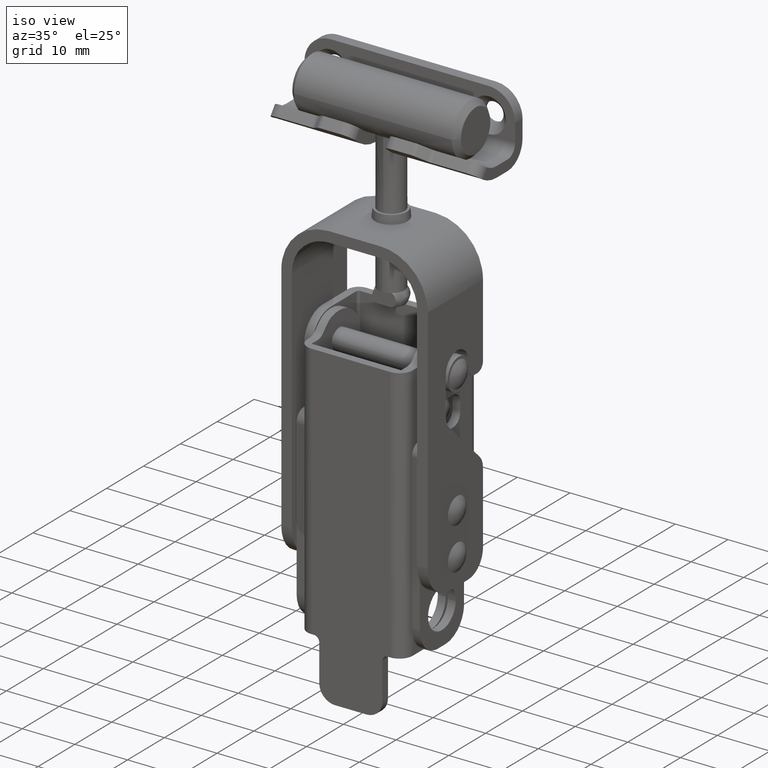
[diagram: clean part render]
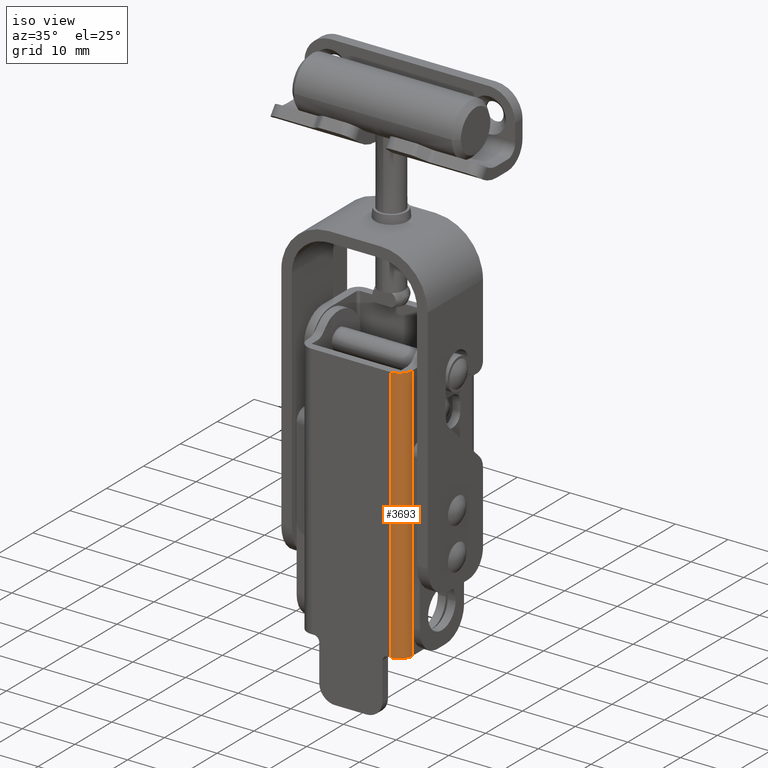
[diagram: same view with one face highlighted and labeled with its STEP entity id]
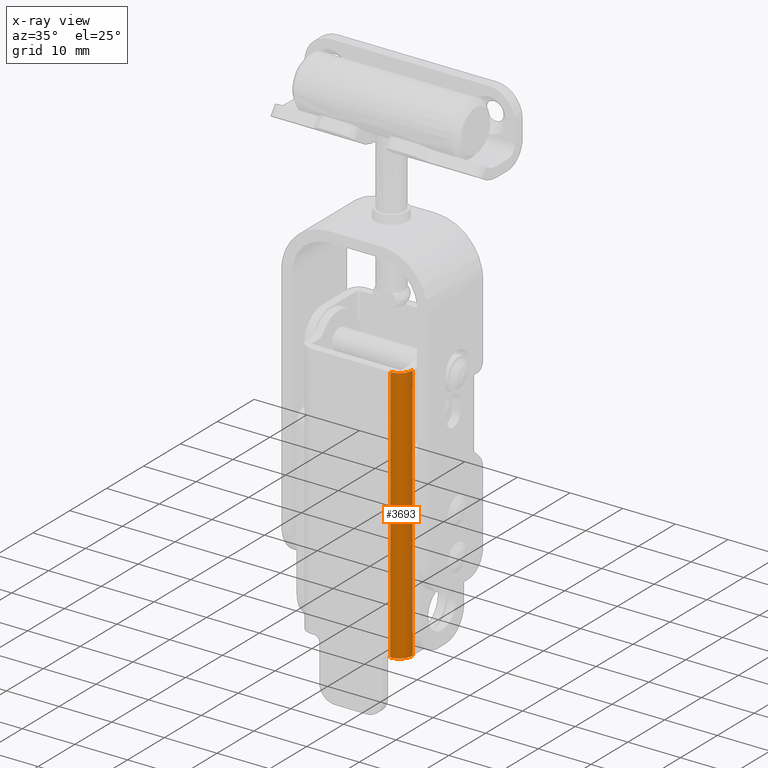
[diagram: x-ray of the same camera — body ghosted, the highlighted face saturated]
A machine part, iso view. The second image highlights one B-rep face of the part: STEP entity #3693.
The next image is the same camera in x-ray: the body ghosted, the highlighted face saturated — about 0% of this face is hidden behind the body in this view.
In plain terms, the highlighted face is a freeform B-spline surface patch.
Its self-contained STEP definition (entity closure, byte-faithful):
#3633=CARTESIAN_POINT('',(7.434557629227816,-17.999143312443341,11.225000003566540));
#3634=CARTESIAN_POINT('',(7.434557629227816,-17.999143312443341,-40.255624996508381));
#3635=CARTESIAN_POINT('',(10.187462001384292,-18.071230650420098,11.225000003566544));
#3636=CARTESIAN_POINT('',(10.187462001384292,-18.071230650420098,-40.255624996508367));
#3637=CARTESIAN_POINT('',(9.993811198449519,-15.324199810939492,11.225000003566542));
#3638=CARTESIAN_POINT('',(9.993811198449519,-15.324199810939492,-40.255624996508388));
#3646=(BOUNDED_SURFACE()B_SPLINE_SURFACE(1,2,((#3633,#3635,#3637),(#3634,#3636,#3638)),.UNSPECIFIED.,.F.,.F.,.U.)B_SPLINE_SURFACE_WITH_KNOTS((2,2),(3,3),(0.0,51.480625000074923),(0.0,4.427855860220895),.UNSPECIFIED.)GEOMETRIC_REPRESENTATION_ITEM()RATIONAL_B_SPLINE_SURFACE(((1.0,0.670944223154768,0.996392648609106),(1.0,0.670944223154768,0.996392648609106)))REPRESENTATION_ITEM('')SURFACE());
#3647=CARTESIAN_POINT('',(7.499999999997500,-18.000000000004452,10.000000003564759));
#3648=VERTEX_POINT('',#3647);
#3649=CARTESIAN_POINT('',(9.999999999997458,-15.500000000004450,10.000000003553160));
#3650=VERTEX_POINT('',#3649);
#3651=CARTESIAN_POINT('',(7.499999999997500,-18.000000000004452,10.000000003564759));
#3652=CARTESIAN_POINT('',(9.999999999997501,-18.000000000004459,10.000000003564759));
#3653=CARTESIAN_POINT('',(9.999999999997501,-15.500000000004450,10.000000003564759));
#3661=(BOUNDED_CURVE()B_SPLINE_CURVE(2,(#3651,#3652,#3653),.UNSPECIFIED.,.F.,.U.)CURVE()GEOMETRIC_REPRESENTATION_ITEM()QUASI_UNIFORM_CURVE()RATIONAL_B_SPLINE_CURVE((1.0,0.707106781186548,1.0))REPRESENTATION_ITEM(''));
#3662=EDGE_CURVE('',#3648,#3650,#3661,.T.);
#3663=ORIENTED_EDGE('',*,*,#3662,.F.);
#3664=CARTESIAN_POINT('',(7.499999999997500,-18.000000000004452,-38.999999996457753));
#3665=VERTEX_POINT('',#3664);
#3666=CARTESIAN_POINT('',(7.499999999997500,-18.000000000004452,-38.999999996457753));
#3667=CARTESIAN_POINT('',(7.499999999997500,-18.000000000004452,10.000000003564759));
#3668=QUASI_UNIFORM_CURVE('',1,(#3666,#3667),.UNSPECIFIED.,.F.,.U.);
#3669=EDGE_CURVE('',#3665,#3648,#3668,.T.);
#3670=ORIENTED_EDGE('',*,*,#3669,.F.);
#3671=CARTESIAN_POINT('',(9.999999999997458,-15.500000000004450,-38.999999996506553));
#3672=VERTEX_POINT('',#3671);
#3673=CARTESIAN_POINT('',(9.999999999997458,-15.500000000004450,-38.999999996506553));
#3674=CARTESIAN_POINT('',(9.999999999997501,-18.000000000004459,-38.999999996458889));
#3675=CARTESIAN_POINT('',(7.499999999997500,-18.000000000004452,-38.999999996457547));
#3683=(BOUNDED_CURVE()B_SPLINE_CURVE(2,(#3673,#3674,#3675),.UNSPECIFIED.,.F.,.U.)CURVE()GEOMETRIC_REPRESENTATION_ITEM()QUASI_UNIFORM_CURVE()RATIONAL_B_SPLINE_CURVE((1.0,0.707106781186548,1.0))REPRESENTATION_ITEM(''));
#3684=EDGE_CURVE('',#3672,#3665,#3683,.T.);
#3685=ORIENTED_EDGE('',*,*,#3684,.F.);
#3686=CARTESIAN_POINT('',(9.999999999997458,-15.500000000004450,10.000000003553160));
#3687=CARTESIAN_POINT('',(9.999999999997458,-15.500000000004450,-38.999999996506553));
#3688=QUASI_UNIFORM_CURVE('',1,(#3686,#3687),.UNSPECIFIED.,.F.,.U.);
#3689=EDGE_CURVE('',#3650,#3672,#3688,.T.);
#3690=ORIENTED_EDGE('',*,*,#3689,.F.);
#3691=EDGE_LOOP('',(#3663,#3670,#3685,#3690));
#3692=FACE_OUTER_BOUND('',#3691,.T.);
#3693=ADVANCED_FACE('',(#3692),#3646,.T.);